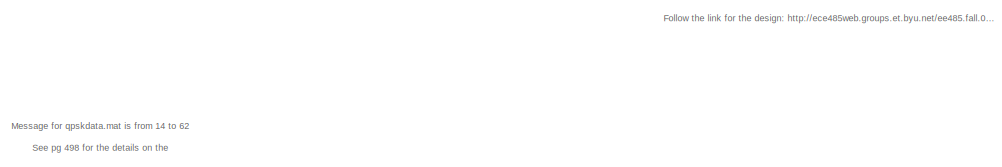
[diagram: root canvas - part 1/5, top center region]
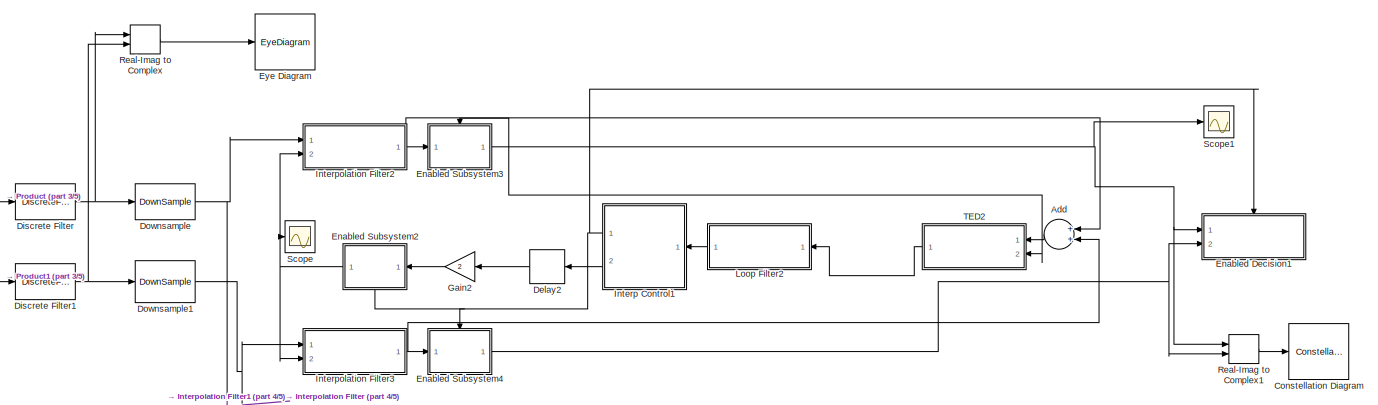
[diagram: root canvas - part 2/5, top right region]
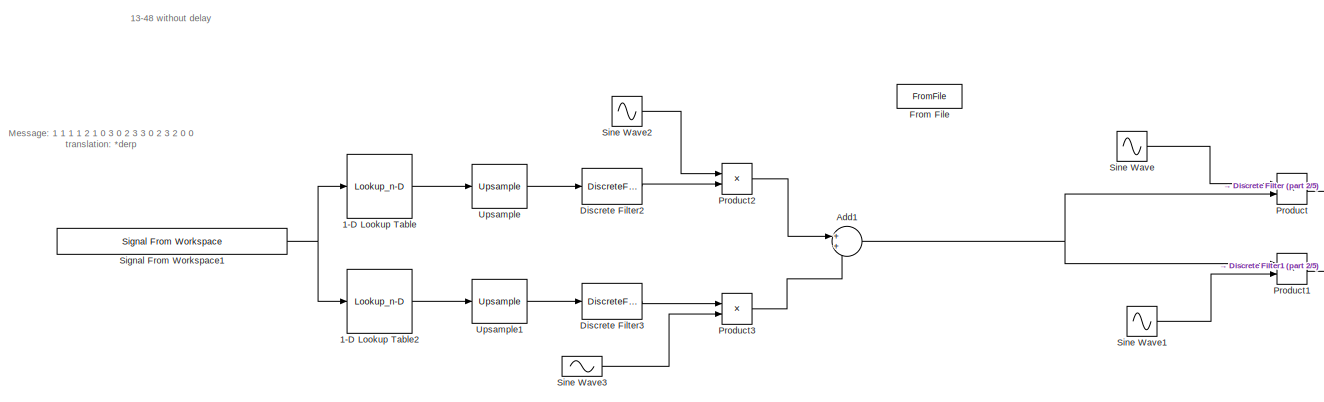
[diagram: root canvas - part 3/5, middle left region]
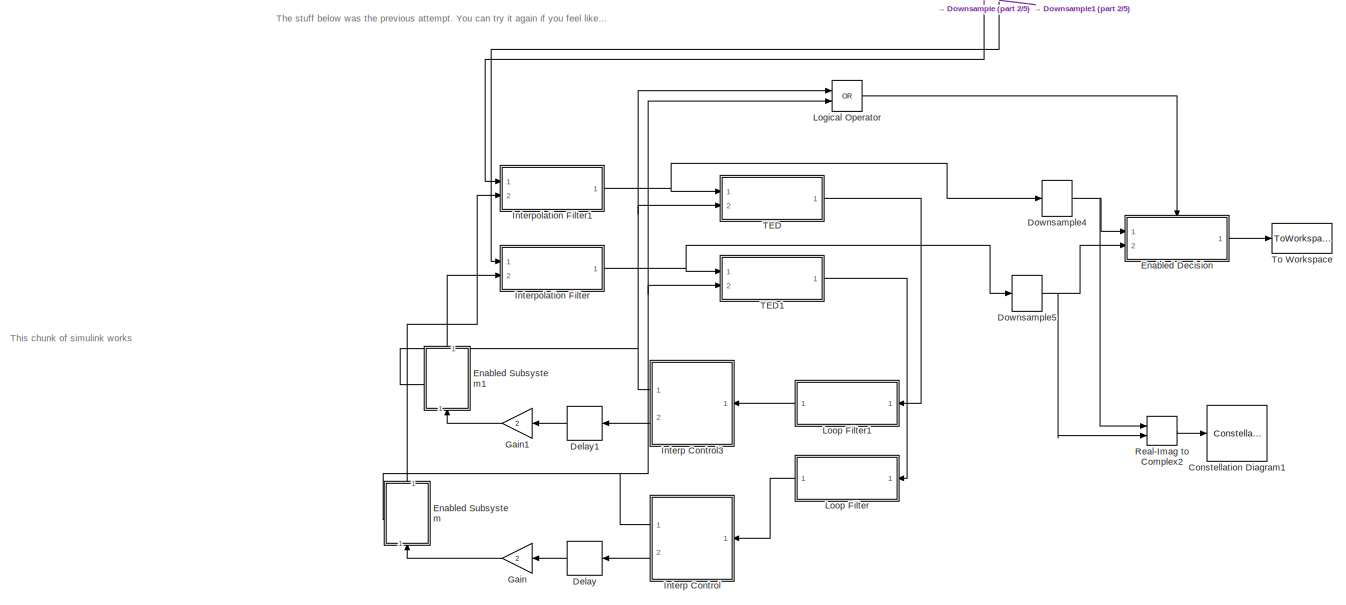
[diagram: root canvas - part 4/5, bottom center region]
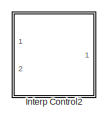
[diagram: root canvas - part 5/5, bottom right region]
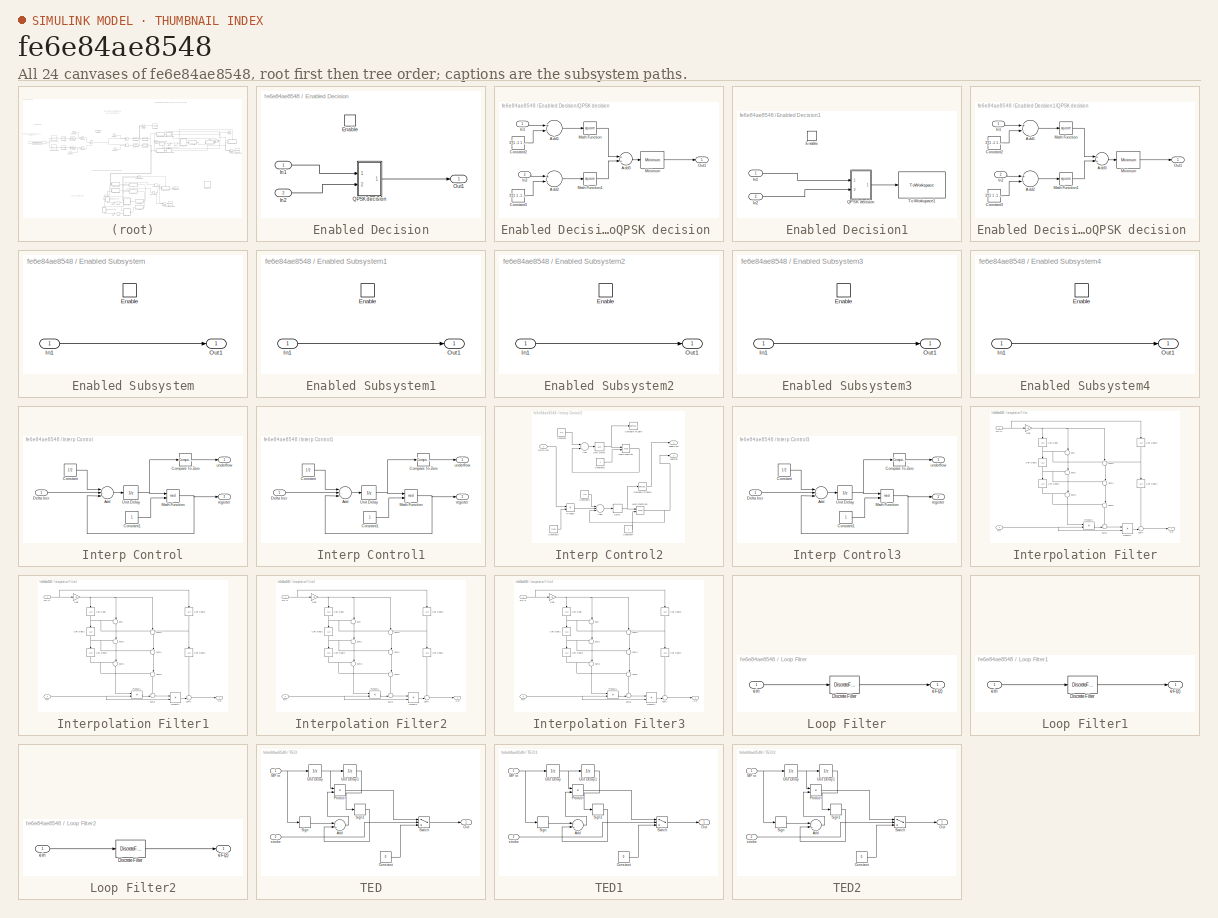
[diagram: thumbnail index - all 24 canvases of the model, root first then tree order]
MODEL slx_fe6e84ae8548
KIND model
CONFIG AbsTol = auto
CONFIG EnableMultiTasking = on
CONFIG FixedStep = auto
CONFIG MaxStep = auto
CONFIG MinStep = auto
CONFIG RelTol = 1e-3
CONFIG SampleTimeConstraint = Unconstrained
CONFIG Solver = VariableStepAuto
CONFIG SolverName = VariableStepAuto
CONFIG StartTime = 0.0
CONFIG StopTime = (12+133)*8
BLOCK [Lookup_n-D] 1-D Lookup Table
  BreakpointsForDimension1 = [0 1 2 3]
  InternalRulePriority = Speed
  NumberOfTableDimensions = 1
  Ports = [1, 1]
  RndMeth = Simplest
  Table = [1 -1 1 -1]*3/sqrt(2)
BLOCK [Lookup_n-D] 1-D Lookup Table2
  BreakpointsForDimension1 = [0 1 2 3]
  InternalRulePriority = Speed
  NumberOfTableDimensions = 1
  Ports = [1, 1]
  RndMeth = Simplest
  Table = [1 1 -1 -1]*3/sqrt(2)
BLOCK [Sum] Add
  InputSameDT = off
  OutDataTypeStr = Inherit: Inherit via internal rule
  Ports = [2, 1]
  SaturateOnIntegerOverflow = off
BLOCK [Sum] Add1
  IconShape = round
  InputSameDT = off
  OutDataTypeStr = Inherit: Inherit via internal rule
  Ports = [2, 1]
  SaturateOnIntegerOverflow = off
BLOCK [ConstellationDiagram] Constellation Diagram
  Ports = [1]
  ScopeSpecificationString = comm.scopes.ConstellationDiagramBlockCfg('CurrentConfiguration', extmgr.ConfigurationSet(extmgr.Configuration('Core','General UI',true),extmgr.Configuration('Core','Source UI',true),extmgr.Configuration('Sources','WiredSimulink',true),extmgr.Configuration('Sources','File',false),extmgr.Configuration('Sources','SPTool',false),extmgr.Configuration('Sources','Workspace',false),extmgr.Configuration('S...<+2266ch>
BLOCK [ConstellationDiagram] Constellation Diagram1
  Commented = on
  Ports = [1]
  ScopeSpecificationString = comm.scopes.ConstellationDiagramBlockCfg('CurrentConfiguration', extmgr.ConfigurationSet(extmgr.Configuration('Core','General UI',true),extmgr.Configuration('Core','Source UI',true),extmgr.Configuration('Sources','Streaming',false),extmgr.Configuration('Sources','WiredSimulink',true),extmgr.Configuration('Sources','Workspace',false),extmgr.Configuration('Sources','File',false),extmgr.Configuration...<+2671ch>
BLOCK [Delay] Delay
  Commented = on
  DelayLength = 1
  InputPortMap = u0
  Ports = [1, 1]
BLOCK [Delay] Delay1
  Commented = on
  DelayLength = 1
  InputPortMap = u0
  Ports = [1, 1]
BLOCK [Delay] Delay2
  DelayLength = 1
  InputPortMap = u0
  Ports = [1, 1]
BLOCK [DiscreteFilter] Discrete Filter
  Denominator = [1]
  InputPortMap = u0
  Numerator = rcosine(1,8,'fir/sqrt',0.5,6)
  Ports = [1, 1]
BLOCK [DiscreteFilter] Discrete Filter1
  Denominator = [1]
  InputPortMap = u0
  Numerator = rcosine(1,8,'fir/sqrt',0.5,6)
  Ports = [1, 1]
BLOCK [DiscreteFilter] Discrete Filter2
  Denominator = [1]
  InputPortMap = u0
  Numerator = rcosine(1,8,'fir/sqrt',0.5,6)
  Ports = [1, 1]
BLOCK [DiscreteFilter] Discrete Filter3
  Denominator = [1]
  InputPortMap = u0
  Numerator = rcosine(1,8,'fir/sqrt',0.5,6)
  Ports = [1, 1]
BLOCK [DownSample] Downsample
  InputProcessing = Inherited (this choice will be removed - see release notes)
  N = 16/2
  RateOptions = Allow multirate processing
  phase = 7
BLOCK [DownSample] Downsample1
  InputProcessing = Inherited (this choice will be removed - see release notes)
  N = 16/2
  RateOptions = Allow multirate processing
  phase = 7
BLOCK [DownSample] Downsample4
  Commented = on
  InputProcessing = Elements as channels (sample based)
  RateOptions = Allow multirate processing
BLOCK [DownSample] Downsample5
  Commented = on
  InputProcessing = Elements as channels (sample based)
  RateOptions = Allow multirate processing
BLOCK [SubSystem] Enabled Decision
  Commented = on
  Ports = [2, 1, 1]
  RequestExecContextInheritance = off
  TreatAsAtomicUnit = on
  Variant = off
BLOCK [EnablePort] Enabled Decision/Enable
  Ports = []
BLOCK [Inport] Enabled Decision/In1
  IconDisplay = Port number
BLOCK [Inport] Enabled Decision/In2
  IconDisplay = Port number
  Port = 2
BLOCK [Outport] Enabled Decision/Out1
  IconDisplay = Port number
BLOCK [SubSystem] Enabled Decision/QPSK decision 
  Ports = [2, 1]
  RequestExecContextInheritance = off
  Variant = off
BLOCK [Sum] Enabled Decision/QPSK decision /Add1
  InputSameDT = off
  Inputs = +-
  OutDataTypeStr = Inherit: Inherit via internal rule
  Ports = [2, 1]
  SaturateOnIntegerOverflow = off
BLOCK [Sum] Enabled Decision/QPSK decision /Add2
  InputSameDT = off
  Inputs = +-
  OutDataTypeStr = Inherit: Inherit via internal rule
  Ports = [2, 1]
  SaturateOnIntegerOverflow = off
BLOCK [Sum] Enabled Decision/QPSK decision /Add3
  InputSameDT = off
  OutDataTypeStr = Inherit: Inherit via internal rule
  Ports = [2, 1]
  SaturateOnIntegerOverflow = off
BLOCK [Constant] Enabled Decision/QPSK decision /Constant2
  Value = 3*[1 -1 1 -1] /sqrt(2)
BLOCK [Constant] Enabled Decision/QPSK decision /Constant3
  Value = 3*[1 1 -1 -1] /sqrt(2)
BLOCK [Inport] Enabled Decision/QPSK decision /In1
  IconDisplay = Port number
BLOCK [Inport] Enabled Decision/QPSK decision /In2
  IconDisplay = Port number
  Port = 2
BLOCK [Math] Enabled Decision/QPSK decision /Math Function
  Operator = square
  Ports = [1, 1]
BLOCK [Math] Enabled Decision/QPSK decision /Math Function1
  Operator = square
  Ports = [1, 1]
BLOCK [Reference] Enabled Decision/QPSK decision /Minimum  REF=dspstat3/Minimum
  Ports = [1, 1]
  SourceBlock = dspstat3/Minimum
  SourceType = Minimum
  UserDataPersistent = on
BLOCK [Outport] Enabled Decision/QPSK decision /Out1
  IconDisplay = Port number
BLOCK [SubSystem] Enabled Decision1
  Ports = [2, 0, 1]
  RequestExecContextInheritance = off
  TreatAsAtomicUnit = on
  Variant = off
BLOCK [EnablePort] Enabled Decision1/Enable
  Ports = []
BLOCK [Inport] Enabled Decision1/In1
  IconDisplay = Port number
BLOCK [Inport] Enabled Decision1/In2
  IconDisplay = Port number
  Port = 2
BLOCK [SubSystem] Enabled Decision1/QPSK decision 
  Ports = [2, 1]
  RequestExecContextInheritance = off
  Variant = off
BLOCK [Sum] Enabled Decision1/QPSK decision /Add1
  InputSameDT = off
  Inputs = +-
  OutDataTypeStr = Inherit: Inherit via internal rule
  Ports = [2, 1]
  SaturateOnIntegerOverflow = off
BLOCK [Sum] Enabled Decision1/QPSK decision /Add2
  InputSameDT = off
  Inputs = +-
  OutDataTypeStr = Inherit: Inherit via internal rule
  Ports = [2, 1]
  SaturateOnIntegerOverflow = off
BLOCK [Sum] Enabled Decision1/QPSK decision /Add3
  InputSameDT = off
  OutDataTypeStr = Inherit: Inherit via internal rule
  Ports = [2, 1]
  SaturateOnIntegerOverflow = off
BLOCK [Constant] Enabled Decision1/QPSK decision /Constant2
  Value = 3*[1 -1 1 -1] /sqrt(2)
BLOCK [Constant] Enabled Decision1/QPSK decision /Constant3
  Value = 3*[1 1 -1 -1] /sqrt(2)
BLOCK [Inport] Enabled Decision1/QPSK decision /In1
  IconDisplay = Port number
BLOCK [Inport] Enabled Decision1/QPSK decision /In2
  IconDisplay = Port number
  Port = 2
BLOCK [Math] Enabled Decision1/QPSK decision /Math Function
  Operator = square
  Ports = [1, 1]
BLOCK [Math] Enabled Decision1/QPSK decision /Math Function1
  Operator = square
  Ports = [1, 1]
BLOCK [Reference] Enabled Decision1/QPSK decision /Minimum  REF=dspstat3/Minimum
  Ports = [1, 1]
  SourceBlock = dspstat3/Minimum
  SourceType = Minimum
  UserDataPersistent = on
BLOCK [Outport] Enabled Decision1/QPSK decision /Out1
  IconDisplay = Port number
BLOCK [ToWorkspace] Enabled Decision1/To Workspace1
  FixptAsFi = on
  MaxDataPoints = inf
  Ports = [1]
  SampleTime = -1
  Save2DSignal = 2-D array (concatenate along first dimension)
  VariableName = QPSKbitsT1
BLOCK [SubSystem] Enabled Subsystem
  Commented = on
  Ports = [1, 1, 1]
  RequestExecContextInheritance = off
  TreatAsAtomicUnit = on
  Variant = off
BLOCK [EnablePort] Enabled Subsystem/Enable
  Ports = []
BLOCK [Inport] Enabled Subsystem/In1
  IconDisplay = Port number
BLOCK [Outport] Enabled Subsystem/Out1
  IconDisplay = Port number
BLOCK [SubSystem] Enabled Subsystem1
  Commented = on
  Ports = [1, 1, 1]
  RequestExecContextInheritance = off
  TreatAsAtomicUnit = on
  Variant = off
BLOCK [EnablePort] Enabled Subsystem1/Enable
  Ports = []
BLOCK [Inport] Enabled Subsystem1/In1
  IconDisplay = Port number
BLOCK [Outport] Enabled Subsystem1/Out1
  IconDisplay = Port number
BLOCK [SubSystem] Enabled Subsystem2
  Ports = [1, 1, 1]
  RequestExecContextInheritance = off
  TreatAsAtomicUnit = on
  Variant = off
BLOCK [EnablePort] Enabled Subsystem2/Enable
  Ports = []
BLOCK [Inport] Enabled Subsystem2/In1
  IconDisplay = Port number
BLOCK [Outport] Enabled Subsystem2/Out1
  IconDisplay = Port number
BLOCK [SubSystem] Enabled Subsystem3
  Ports = [1, 1, 1]
  RequestExecContextInheritance = off
  TreatAsAtomicUnit = on
  Variant = off
BLOCK [EnablePort] Enabled Subsystem3/Enable
  Ports = []
BLOCK [Inport] Enabled Subsystem3/In1
  IconDisplay = Port number
BLOCK [Outport] Enabled Subsystem3/Out1
  IconDisplay = Port number
BLOCK [SubSystem] Enabled Subsystem4
  Ports = [1, 1, 1]
  RequestExecContextInheritance = off
  TreatAsAtomicUnit = on
  Variant = off
BLOCK [EnablePort] Enabled Subsystem4/Enable
  Ports = []
BLOCK [Inport] Enabled Subsystem4/In1
  IconDisplay = Port number
BLOCK [Outport] Enabled Subsystem4/Out1
  IconDisplay = Port number
BLOCK [EyeDiagram] Eye Diagram
  Ports = [1]
  ScopeSpecificationString = comm.scopes.EyeDiagramBlockCfg('CurrentConfiguration', extmgr.ConfigurationSet(extmgr.Configuration('Core','General UI',true),extmgr.Configuration('Core','Source UI',true),extmgr.Configuration('Sources','WiredSimulink',true),extmgr.Configuration('Sources','File',false),extmgr.Configuration('Sources','Streaming',false),extmgr.Configuration('Sources','SPTool',false),extmgr.Configuration('Sources','W...<+1878ch>
BLOCK [FromFile] From File
  Commented = on
  FileName = qpskdata.mat
  SampleTime = 1
BLOCK [Gain] Gain
  Commented = on
  Gain = 2
  OutDataTypeStr = Inherit: Inherit via internal rule
  ParamDataTypeStr = Inherit: Inherit via internal rule
  SaturateOnIntegerOverflow = off
BLOCK [Gain] Gain1
  Commented = on
  Gain = 2
  OutDataTypeStr = Inherit: Inherit via internal rule
  ParamDataTypeStr = Inherit: Inherit via internal rule
  SaturateOnIntegerOverflow = off
BLOCK [Gain] Gain2
  Gain = 2
  OutDataTypeStr = Inherit: Inherit via internal rule
  ParamDataTypeStr = Inherit: Inherit via internal rule
  SaturateOnIntegerOverflow = off
BLOCK [SubSystem] Interp Control
  Commented = on
  Ports = [1, 2]
  RequestExecContextInheritance = off
  Variant = off
BLOCK [Sum] Interp Control/Add
  InputSameDT = off
  Inputs = --+
  OutDataTypeStr = Inherit: Inherit via internal rule
  Ports = [3, 1]
  SaturateOnIntegerOverflow = off
BLOCK [Reference] Interp Control/Compare To Zero  REF=simulink/Logic and Bit
Operations/Compare
To Zero
  Ports = [1, 1]
  SourceBlock = simulink/Logic and Bit\nOperations/Compare\nTo Zero
  SourceType = Compare To Zero
BLOCK [Constant] Interp Control/Constant
  Value = 1/2
BLOCK [Constant] Interp Control/Constant1
BLOCK [Inport] Interp Control/Delta Incr
  IconDisplay = Port number
BLOCK [Math] Interp Control/Math Function
  Operator = mod
  Ports = [2, 1]
BLOCK [UnitDelay] Interp Control/Unit Delay
  InputProcessing = Elements as channels (sample based)
  SampleTime = -1
BLOCK [Outport] Interp Control/register
  IconDisplay = Port number
  Port = 2
BLOCK [Outport] Interp Control/underflow
  IconDisplay = Port number
BLOCK [SubSystem] Interp Control1
  Ports = [1, 2]
  RequestExecContextInheritance = off
  Variant = off
BLOCK [Sum] Interp Control1/Add
  InputSameDT = off
  Inputs = --+
  OutDataTypeStr = Inherit: Inherit via internal rule
  Ports = [3, 1]
  SaturateOnIntegerOverflow = off
BLOCK [Reference] Interp Control1/Compare To Zero  REF=simulink/Logic and Bit
Operations/Compare
To Zero
  Ports = [1, 1]
  SourceBlock = simulink/Logic and Bit\nOperations/Compare\nTo Zero
  SourceType = Compare To Zero
BLOCK [Constant] Interp Control1/Constant
  Value = 1/2
BLOCK [Constant] Interp Control1/Constant1
BLOCK [Inport] Interp Control1/Delta Incr
  IconDisplay = Port number
BLOCK [Math] Interp Control1/Math Function
  Operator = mod
  Ports = [2, 1]
BLOCK [UnitDelay] Interp Control1/Unit Delay
  InputProcessing = Elements as channels (sample based)
  SampleTime = -1
BLOCK [Outport] Interp Control1/register
  IconDisplay = Port number
  Port = 2
BLOCK [Outport] Interp Control1/underflow
  IconDisplay = Port number
BLOCK [SubSystem] Interp Control2
  Commented = on
  Ports = [1, 2]
  RequestExecContextInheritance = off
  Variant = off
BLOCK [Sum] Interp Control2/Add
  Commented = on
  InputSameDT = off
  Inputs = --+
  OutDataTypeStr = Inherit: Inherit via internal rule
  Ports = [3, 1]
  SaturateOnIntegerOverflow = off
BLOCK [Sum] Interp Control2/Add1
  InputSameDT = off
  Inputs = --+
  OutDataTypeStr = Inherit: Inherit via internal rule
  Ports = [3, 1]
  SaturateOnIntegerOverflow = off
BLOCK [Reference] Interp Control2/Compare To Zero  REF=simulink/Logic and Bit
Operations/Compare
To Zero
  Commented = on
  Ports = [1, 1]
  SourceBlock = simulink/Logic and Bit\nOperations/Compare\nTo Zero
  SourceType = Compare To Zero
BLOCK [Reference] Interp Control2/Compare To Zero1  REF=simulink/Logic and Bit
Operations/Compare
To Zero
  Ports = [1, 1]
  SourceBlock = simulink/Logic and Bit\nOperations/Compare\nTo Zero
  SourceType = Compare To Zero
BLOCK [Constant] Interp Control2/Constant
  Commented = on
  Value = 1/2
BLOCK [Constant] Interp Control2/Constant1
  Commented = on
BLOCK [Constant] Interp Control2/Constant2
  Value = 2*pi/4
BLOCK [Constant] Interp Control2/Constant3
  Value = 1/8
BLOCK [Constant] Interp Control2/Constant4
BLOCK [Delay] Interp Control2/Delay
  DelayLength = 1
  InputPortMap = u0
  Ports = [1, 1]
BLOCK [Inport] Interp Control2/Delta Incr
  IconDisplay = Port number
BLOCK [Math] Interp Control2/Math Function
  Commented = on
  Operator = mod
  Ports = [2, 1]
BLOCK [Math] Interp Control2/Math Function1
  Operator = mod
  Ports = [2, 1]
BLOCK [Product] Interp Control2/Product
  InputSameDT = off
  OutDataTypeStr = Inherit: Inherit via internal rule
  Ports = [2, 1]
  RndMeth = Floor
  SaturateOnIntegerOverflow = off
BLOCK [UnitDelay] Interp Control2/Unit Delay
  Commented = on
  InputProcessing = Elements as channels (sample based)
  SampleTime = -1
BLOCK [Outport] Interp Control2/register
  IconDisplay = Port number
  Port = 2
BLOCK [Outport] Interp Control2/underflow
  IconDisplay = Port number
BLOCK [SubSystem] Interp Control3
  Commented = on
  Ports = [1, 2]
  RequestExecContextInheritance = off
  Variant = off
BLOCK [Sum] Interp Control3/Add
  InputSameDT = off
  Inputs = --+
  OutDataTypeStr = Inherit: Inherit via internal rule
  Ports = [3, 1]
  SaturateOnIntegerOverflow = off
BLOCK [Reference] Interp Control3/Compare To Zero  REF=simulink/Logic and Bit
Operations/Compare
To Zero
  Ports = [1, 1]
  SourceBlock = simulink/Logic and Bit\nOperations/Compare\nTo Zero
  SourceType = Compare To Zero
BLOCK [Constant] Interp Control3/Constant
  Value = 1/2
BLOCK [Constant] Interp Control3/Constant1
BLOCK [Inport] Interp Control3/Delta Incr
  IconDisplay = Port number
BLOCK [Math] Interp Control3/Math Function
  Operator = mod
  Ports = [2, 1]
BLOCK [UnitDelay] Interp Control3/Unit Delay
  InputProcessing = Elements as channels (sample based)
  SampleTime = -1
BLOCK [Outport] Interp Control3/register
  IconDisplay = Port number
  Port = 2
BLOCK [Outport] Interp Control3/underflow
  IconDisplay = Port number
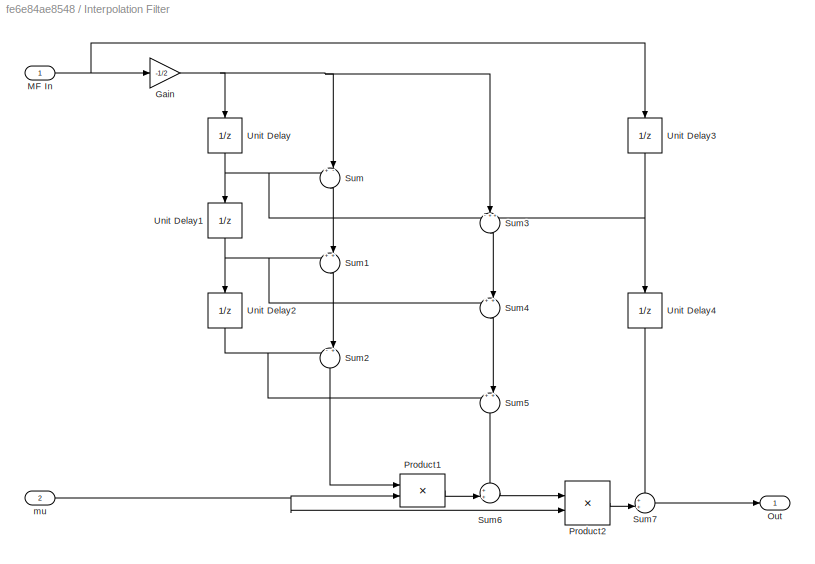
BLOCK [SubSystem] Interpolation Filter
  Commented = on
  Ports = [2, 1]
  RequestExecContextInheritance = off
  Variant = off
BLOCK [Gain] Interpolation Filter/Gain
  Gain = -1/2
  OutDataTypeStr = Inherit: Inherit via internal rule
  ParamDataTypeStr = Inherit: Inherit via internal rule
  SaturateOnIntegerOverflow = off
BLOCK [Inport] Interpolation Filter/MF In
  IconDisplay = Port number
BLOCK [Outport] Interpolation Filter/Out
  IconDisplay = Port number
BLOCK [Product] Interpolation Filter/Product1
  Ports = [2, 1]
  RndMeth = Floor
BLOCK [Product] Interpolation Filter/Product2
  Ports = [2, 1]
  RndMeth = Floor
BLOCK [Sum] Interpolation Filter/Sum
  IconShape = round
  Inputs = +-|
  Ports = [2, 1]
BLOCK [Sum] Interpolation Filter/Sum1
  IconShape = round
  Inputs = ++|
  Ports = [2, 1]
BLOCK [Sum] Interpolation Filter/Sum2
  IconShape = round
  Inputs = -+|
  Ports = [2, 1]
BLOCK [Sum] Interpolation Filter/Sum3
  IconShape = round
  Inputs = -++
  Ports = [3, 1]
BLOCK [Sum] Interpolation Filter/Sum4
  IconShape = round
  Inputs = ++|
  Ports = [2, 1]
BLOCK [Sum] Interpolation Filter/Sum5
  IconShape = round
  Inputs = ++|
  Ports = [2, 1]
BLOCK [Sum] Interpolation Filter/Sum6
  IconShape = round
  Inputs = ++|
  Ports = [2, 1]
BLOCK [Sum] Interpolation Filter/Sum7
  IconShape = round
  Inputs = ++|
  Ports = [2, 1]
BLOCK [UnitDelay] Interpolation Filter/Unit Delay
  InputProcessing = Elements as channels (sample based)
  SampleTime = -1
BLOCK [UnitDelay] Interpolation Filter/Unit Delay1
  InputProcessing = Elements as channels (sample based)
  SampleTime = -1
BLOCK [UnitDelay] Interpolation Filter/Unit Delay2
  InputProcessing = Elements as channels (sample based)
  SampleTime = -1
BLOCK [UnitDelay] Interpolation Filter/Unit Delay3
  InputProcessing = Elements as channels (sample based)
  SampleTime = -1
BLOCK [UnitDelay] Interpolation Filter/Unit Delay4
  InputProcessing = Elements as channels (sample based)
  SampleTime = -1
BLOCK [Inport] Interpolation Filter/mu
  IconDisplay = Port number
  Port = 2
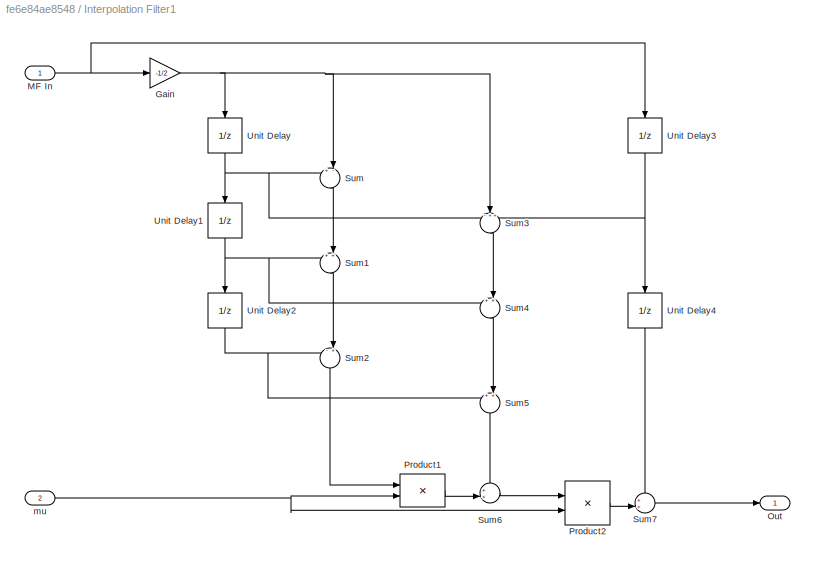
BLOCK [SubSystem] Interpolation Filter1
  Commented = on
  Ports = [2, 1]
  RequestExecContextInheritance = off
  Variant = off
BLOCK [Gain] Interpolation Filter1/Gain
  Gain = -1/2
  OutDataTypeStr = Inherit: Inherit via internal rule
  ParamDataTypeStr = Inherit: Inherit via internal rule
  SaturateOnIntegerOverflow = off
BLOCK [Inport] Interpolation Filter1/MF In
  IconDisplay = Port number
BLOCK [Outport] Interpolation Filter1/Out
  IconDisplay = Port number
BLOCK [Product] Interpolation Filter1/Product1
  Ports = [2, 1]
  RndMeth = Floor
BLOCK [Product] Interpolation Filter1/Product2
  Ports = [2, 1]
  RndMeth = Floor
BLOCK [Sum] Interpolation Filter1/Sum
  IconShape = round
  Inputs = +-|
  Ports = [2, 1]
BLOCK [Sum] Interpolation Filter1/Sum1
  IconShape = round
  Inputs = ++|
  Ports = [2, 1]
BLOCK [Sum] Interpolation Filter1/Sum2
  IconShape = round
  Inputs = -+|
  Ports = [2, 1]
BLOCK [Sum] Interpolation Filter1/Sum3
  IconShape = round
  Inputs = -++
  Ports = [3, 1]
BLOCK [Sum] Interpolation Filter1/Sum4
  IconShape = round
  Inputs = ++|
  Ports = [2, 1]
BLOCK [Sum] Interpolation Filter1/Sum5
  IconShape = round
  Inputs = ++|
  Ports = [2, 1]
BLOCK [Sum] Interpolation Filter1/Sum6
  IconShape = round
  Inputs = ++|
  Ports = [2, 1]
BLOCK [Sum] Interpolation Filter1/Sum7
  IconShape = round
  Inputs = ++|
  Ports = [2, 1]
BLOCK [UnitDelay] Interpolation Filter1/Unit Delay
  InputProcessing = Elements as channels (sample based)
  SampleTime = -1
BLOCK [UnitDelay] Interpolation Filter1/Unit Delay1
  InputProcessing = Elements as channels (sample based)
  SampleTime = -1
BLOCK [UnitDelay] Interpolation Filter1/Unit Delay2
  InputProcessing = Elements as channels (sample based)
  SampleTime = -1
BLOCK [UnitDelay] Interpolation Filter1/Unit Delay3
  InputProcessing = Elements as channels (sample based)
  SampleTime = -1
BLOCK [UnitDelay] Interpolation Filter1/Unit Delay4
  InputProcessing = Elements as channels (sample based)
  SampleTime = -1
BLOCK [Inport] Interpolation Filter1/mu
  IconDisplay = Port number
  Port = 2
BLOCK [SubSystem] Interpolation Filter2
  Ports = [2, 1]
  RequestExecContextInheritance = off
  Variant = off
BLOCK [Gain] Interpolation Filter2/Gain
  Gain = -1/2
  OutDataTypeStr = Inherit: Inherit via internal rule
  ParamDataTypeStr = Inherit: Inherit via internal rule
  SaturateOnIntegerOverflow = off
BLOCK [Inport] Interpolation Filter2/MF In
  IconDisplay = Port number
BLOCK [Outport] Interpolation Filter2/Out
  IconDisplay = Port number
BLOCK [Product] Interpolation Filter2/Product1
  Ports = [2, 1]
  RndMeth = Floor
BLOCK [Product] Interpolation Filter2/Product2
  Ports = [2, 1]
  RndMeth = Floor
BLOCK [Sum] Interpolation Filter2/Sum
  IconShape = round
  Inputs = +-|
  Ports = [2, 1]
BLOCK [Sum] Interpolation Filter2/Sum1
  IconShape = round
  Inputs = ++|
  Ports = [2, 1]
BLOCK [Sum] Interpolation Filter2/Sum2
  IconShape = round
  Inputs = -+|
  Ports = [2, 1]
BLOCK [Sum] Interpolation Filter2/Sum3
  IconShape = round
  Inputs = -++
  Ports = [3, 1]
BLOCK [Sum] Interpolation Filter2/Sum4
  IconShape = round
  Inputs = ++|
  Ports = [2, 1]
BLOCK [Sum] Interpolation Filter2/Sum5
  IconShape = round
  Inputs = ++|
  Ports = [2, 1]
BLOCK [Sum] Interpolation Filter2/Sum6
  IconShape = round
  Inputs = ++|
  Ports = [2, 1]
BLOCK [Sum] Interpolation Filter2/Sum7
  IconShape = round
  Inputs = ++|
  Ports = [2, 1]
BLOCK [UnitDelay] Interpolation Filter2/Unit Delay
  InputProcessing = Elements as channels (sample based)
  SampleTime = -1
BLOCK [UnitDelay] Interpolation Filter2/Unit Delay1
  InputProcessing = Elements as channels (sample based)
  SampleTime = -1
BLOCK [UnitDelay] Interpolation Filter2/Unit Delay2
  InputProcessing = Elements as channels (sample based)
  SampleTime = -1
BLOCK [UnitDelay] Interpolation Filter2/Unit Delay3
  InputProcessing = Elements as channels (sample based)
  SampleTime = -1
BLOCK [UnitDelay] Interpolation Filter2/Unit Delay4
  InputProcessing = Elements as channels (sample based)
  SampleTime = -1
BLOCK [Inport] Interpolation Filter2/mu
  IconDisplay = Port number
  Port = 2
BLOCK [SubSystem] Interpolation Filter3
  Ports = [2, 1]
  RequestExecContextInheritance = off
  Variant = off
BLOCK [Gain] Interpolation Filter3/Gain
  Gain = -1/2
  OutDataTypeStr = Inherit: Inherit via internal rule
  ParamDataTypeStr = Inherit: Inherit via internal rule
  SaturateOnIntegerOverflow = off
BLOCK [Inport] Interpolation Filter3/MF In
  IconDisplay = Port number
BLOCK [Outport] Interpolation Filter3/Out
  IconDisplay = Port number
BLOCK [Product] Interpolation Filter3/Product1
  Ports = [2, 1]
  RndMeth = Floor
BLOCK [Product] Interpolation Filter3/Product2
  Ports = [2, 1]
  RndMeth = Floor
BLOCK [Sum] Interpolation Filter3/Sum
  IconShape = round
  Inputs = +-|
  Ports = [2, 1]
BLOCK [Sum] Interpolation Filter3/Sum1
  IconShape = round
  Inputs = ++|
  Ports = [2, 1]
BLOCK [Sum] Interpolation Filter3/Sum2
  IconShape = round
  Inputs = -+|
  Ports = [2, 1]
BLOCK [Sum] Interpolation Filter3/Sum3
  IconShape = round
  Inputs = -++
  Ports = [3, 1]
BLOCK [Sum] Interpolation Filter3/Sum4
  IconShape = round
  Inputs = ++|
  Ports = [2, 1]
BLOCK [Sum] Interpolation Filter3/Sum5
  IconShape = round
  Inputs = ++|
  Ports = [2, 1]
BLOCK [Sum] Interpolation Filter3/Sum6
  IconShape = round
  Inputs = ++|
  Ports = [2, 1]
BLOCK [Sum] Interpolation Filter3/Sum7
  IconShape = round
  Inputs = ++|
  Ports = [2, 1]
BLOCK [UnitDelay] Interpolation Filter3/Unit Delay
  InputProcessing = Elements as channels (sample based)
  SampleTime = -1
BLOCK [UnitDelay] Interpolation Filter3/Unit Delay1
  InputProcessing = Elements as channels (sample based)
  SampleTime = -1
BLOCK [UnitDelay] Interpolation Filter3/Unit Delay2
  InputProcessing = Elements as channels (sample based)
  SampleTime = -1
BLOCK [UnitDelay] Interpolation Filter3/Unit Delay3
  InputProcessing = Elements as channels (sample based)
  SampleTime = -1
BLOCK [UnitDelay] Interpolation Filter3/Unit Delay4
  InputProcessing = Elements as channels (sample based)
  SampleTime = -1
BLOCK [Inport] Interpolation Filter3/mu
  IconDisplay = Port number
  Port = 2
BLOCK [Logic] Logical Operator
  AllPortsSameDT = off
  Commented = on
  Operator = OR
  OutDataTypeStr = boolean
  Ports = [2, 1]
BLOCK [SubSystem] Loop Filter
  Commented = on
  Ports = [1, 1]
  RequestExecContextInheritance = off
  Variant = off
BLOCK [DiscreteFilter] Loop Filter/Discrete Filter
  Denominator = [1 -1]
  InputPortMap = u0
  Numerator = [(K1+K2) -K1]
  Ports = [1, 1]
BLOCK [Outport] Loop Filter/e F(z)
  IconDisplay = Port number
BLOCK [Inport] Loop Filter/e in
  IconDisplay = Port number
BLOCK [SubSystem] Loop Filter1
  Commented = on
  Ports = [1, 1]
  RequestExecContextInheritance = off
  Variant = off
BLOCK [DiscreteFilter] Loop Filter1/Discrete Filter
  Denominator = [1 -1]
  InputPortMap = u0
  Numerator = [(K1+K2) -K1]
  Ports = [1, 1]
BLOCK [Outport] Loop Filter1/e F(z)
  IconDisplay = Port number
BLOCK [Inport] Loop Filter1/e in
  IconDisplay = Port number
BLOCK [SubSystem] Loop Filter2
  Ports = [1, 1]
  RequestExecContextInheritance = off
  Variant = off
BLOCK [DiscreteFilter] Loop Filter2/Discrete Filter
  Denominator = [1 -1]
  InputPortMap = u0
  Numerator = [(K1+K2) -K1]
  Ports = [1, 1]
BLOCK [Outport] Loop Filter2/e F(z)
  IconDisplay = Port number
BLOCK [Inport] Loop Filter2/e in
  IconDisplay = Port number
BLOCK [Product] Product
  InputSameDT = off
  OutDataTypeStr = Inherit: Inherit via internal rule
  Ports = [2, 1]
  RndMeth = Floor
  SaturateOnIntegerOverflow = off
BLOCK [Product] Product1
  InputSameDT = off
  OutDataTypeStr = Inherit: Inherit via internal rule
  Ports = [2, 1]
  RndMeth = Floor
  SaturateOnIntegerOverflow = off
BLOCK [Product] Product2
  InputSameDT = off
  OutDataTypeStr = Inherit: Inherit via internal rule
  Ports = [2, 1]
  RndMeth = Floor
  SaturateOnIntegerOverflow = off
BLOCK [Product] Product3
  InputSameDT = off
  OutDataTypeStr = Inherit: Inherit via internal rule
  Ports = [2, 1]
  RndMeth = Floor
  SaturateOnIntegerOverflow = off
BLOCK [RealImagToComplex] Real-Imag to Complex
  Ports = [2, 1]
BLOCK [RealImagToComplex] Real-Imag to Complex1
  Ports = [2, 1]
BLOCK [RealImagToComplex] Real-Imag to Complex2
  Commented = on
  Ports = [2, 1]
BLOCK [Scope] Scope
  NumInputPorts = 1
  Ports = [1]
  ScopeSpecificationString = Simulink.scopes.TimeScopeBlockCfg('CurrentConfiguration', extmgr.ConfigurationSet(extmgr.Configuration('Core','General UI',true),extmgr.Configuration('Core','Source UI',true),extmgr.Configuration('Sources','WiredSimulink',true),extmgr.Configuration('Visuals','Time Domain',true,'SerializedDisplays',{struct('MinYLimReal','-0.12598','MaxYLimReal','1.13379','YLabelReal','','MinYLimMag','0.00000','MaxY...<+1338ch>
BLOCK [Scope] Scope1
  NumInputPorts = 1
  Ports = [1]
  ScopeSpecificationString = Simulink.scopes.TimeScopeBlockCfg('CurrentConfiguration', extmgr.ConfigurationSet(extmgr.Configuration('Core','General UI',true),extmgr.Configuration('Core','Source UI',true),extmgr.Configuration('Sources','WiredSimulink',true,'DataLoggingVariableName','ScopeData1'),extmgr.Configuration('Visuals','Time Domain',true,'SerializedDisplays',{struct('MinYLimReal','-3.78033','MaxYLimReal','3.86412','YLab...<+1377ch>
BLOCK [Reference] Signal From Workspace1  REF=dspsrcs4/Signal From
Workspace
  Ports = [0, 1]
  SourceBlock = dspsrcs4/Signal From\nWorkspace
  SourceType = Signal From Workspace
BLOCK [Sin] Sine Wave
  Amplitude = sqrt(2)
  Frequency = 2*pi/4
  Phase = pi/2
  Ports = [0, 1]
  SampleTime = .5
BLOCK [Sin] Sine Wave1
  Amplitude = -sqrt(2)
  Frequency = 2*pi/4
  Ports = [0, 1]
  SampleTime = .5
BLOCK [Sin] Sine Wave2
  Amplitude = sqrt(2)
  Frequency = 2*pi/4
  Phase = pi/2
  Ports = [0, 1]
  SampleTime = .5
BLOCK [Sin] Sine Wave3
  Amplitude = -sqrt(2)
  Frequency = 2*pi/4
  Ports = [0, 1]
  SampleTime = .5
BLOCK [SubSystem] TED
  Commented = on
  Ports = [2, 1]
  RequestExecContextInheritance = off
  Variant = off
BLOCK [Sum] TED/Add
  InputSameDT = off
  Inputs = -+
  OutDataTypeStr = Inherit: Inherit via internal rule
  Ports = [2, 1]
  SaturateOnIntegerOverflow = off
BLOCK [Constant] TED/Constant
  Value = 0
BLOCK [Inport] TED/MF in
  IconDisplay = Port number
BLOCK [Outport] TED/Out
  IconDisplay = Port number
BLOCK [Product] TED/Product
  InputSameDT = off
  OutDataTypeStr = Inherit: Inherit via internal rule
  Ports = [2, 1]
  RndMeth = Floor
  SaturateOnIntegerOverflow = off
BLOCK [Signum] TED/Sign
BLOCK [Signum] TED/Sign1
BLOCK [Switch] TED/Switch
  InputSameDT = off
  Threshold = 0.5
BLOCK [UnitDelay] TED/Unit Delay
  InputProcessing = Elements as channels (sample based)
  SampleTime = -1
BLOCK [UnitDelay] TED/Unit Delay1
  InputProcessing = Elements as channels (sample based)
  SampleTime = -1
BLOCK [Inport] TED/strobe
  IconDisplay = Port number
  Port = 2
BLOCK [SubSystem] TED1
  Commented = on
  Ports = [2, 1]
  RequestExecContextInheritance = off
  Variant = off
BLOCK [Sum] TED1/Add
  InputSameDT = off
  Inputs = -+
  OutDataTypeStr = Inherit: Inherit via internal rule
  Ports = [2, 1]
  SaturateOnIntegerOverflow = off
BLOCK [Constant] TED1/Constant
  Value = 0
BLOCK [Inport] TED1/MF in
  IconDisplay = Port number
BLOCK [Outport] TED1/Out
  IconDisplay = Port number
BLOCK [Product] TED1/Product
  InputSameDT = off
  OutDataTypeStr = Inherit: Inherit via internal rule
  Ports = [2, 1]
  RndMeth = Floor
  SaturateOnIntegerOverflow = off
BLOCK [Signum] TED1/Sign
BLOCK [Signum] TED1/Sign1
BLOCK [Switch] TED1/Switch
  InputSameDT = off
  Threshold = 0.5
BLOCK [UnitDelay] TED1/Unit Delay
  InputProcessing = Elements as channels (sample based)
  SampleTime = -1
BLOCK [UnitDelay] TED1/Unit Delay1
  InputProcessing = Elements as channels (sample based)
  SampleTime = -1
BLOCK [Inport] TED1/strobe
  IconDisplay = Port number
  Port = 2
BLOCK [SubSystem] TED2
  Ports = [2, 1]
  RequestExecContextInheritance = off
  Variant = off
BLOCK [Sum] TED2/Add
  InputSameDT = off
  Inputs = -+
  OutDataTypeStr = Inherit: Inherit via internal rule
  Ports = [2, 1]
  SaturateOnIntegerOverflow = off
BLOCK [Constant] TED2/Constant
  Value = 0
BLOCK [Inport] TED2/MF in
  IconDisplay = Port number
BLOCK [Outport] TED2/Out
  IconDisplay = Port number
BLOCK [Product] TED2/Product
  InputSameDT = off
  OutDataTypeStr = Inherit: Inherit via internal rule
  Ports = [2, 1]
  RndMeth = Floor
  SaturateOnIntegerOverflow = off
BLOCK [Signum] TED2/Sign
BLOCK [Signum] TED2/Sign1
BLOCK [Switch] TED2/Switch
  InputSameDT = off
  Threshold = 0.5
BLOCK [UnitDelay] TED2/Unit Delay
  InputProcessing = Elements as channels (sample based)
  SampleTime = -1
BLOCK [UnitDelay] TED2/Unit Delay1
  InputProcessing = Elements as channels (sample based)
  SampleTime = -1
BLOCK [Inport] TED2/strobe
  IconDisplay = Port number
  Port = 2
BLOCK [ToWorkspace] To Workspace
  Commented = on
  FixptAsFi = on
  MaxDataPoints = inf
  Ports = [1]
  SampleTime = -1
  Save2DSignal = 2-D array (concatenate along first dimension)
  VariableName = QPSKbitsT
BLOCK [Reference] Upsample  REF=dspsigops/Upsample
  Ports = [1, 1]
  SourceBlock = dspsigops/Upsample
  SourceType = Upsample
  UserDataPersistent = on
BLOCK [Reference] Upsample1  REF=dspsigops/Upsample
  Ports = [1, 1]
  SourceBlock = dspsigops/Upsample
  SourceType = Upsample
  UserDataPersistent = on
ANNOTATION (root): 13-48 without delay
ANNOTATION (root): The stuff below was the previous attempt. You can try it again if you feel like it.
ANNOTATION (root): This chunk of simulink works
ANNOTATION (root): Follow the link for the design: http://ece485web.groups.et.byu.net/ee485.fall.01/simulink/qpsktr/qpsktr.html
ANNOTATION (root): Message for qpskdata.mat is from 14 to 62 See pg 498 for the details on the
ANNOTATION (root): Message: 1 1 1 1 2 1 0 3 0 2 3 3 0 2 3 2 0 0 translation: *derp
LINE 1-D Lookup Table2:1 -> Upsample1:1
LINE 1-D Lookup Table:1 -> Upsample:1
NET Add1:1 -> Product1:1, Product:2
LINE Add:1 -> TED2:1
LINE Delay1:1 -> Gain1:1
LINE Delay2:1 -> Gain2:1
LINE Delay:1 -> Gain:1
NET Discrete Filter1:1 -> Downsample1:1, Real-Imag to Complex:2
LINE Discrete Filter2:1 -> Product2:2
LINE Discrete Filter3:1 -> Product3:1
NET Discrete Filter:1 -> Downsample:1, Real-Imag to Complex:1
NET Downsample1:1 -> Interpolation Filter3:1, Interpolation Filter:1
NET Downsample4:1 -> Enabled Decision:1, Real-Imag to Complex2:1
NET Downsample5:1 -> Enabled Decision:2, Real-Imag to Complex2:2
NET Downsample:1 -> Interpolation Filter1:1, Interpolation Filter2:1
LINE Enabled Decision/In1:1 -> Enabled Decision/QPSK decision :1
LINE Enabled Decision/In2:1 -> Enabled Decision/QPSK decision :2
LINE Enabled Decision/QPSK decision /Add1:1 -> Enabled Decision/QPSK decision /Math Function:1
LINE Enabled Decision/QPSK decision /Add2:1 -> Enabled Decision/QPSK decision /Math Function1:1
LINE Enabled Decision/QPSK decision /Add3:1 -> Enabled Decision/QPSK decision /Minimum:1
LINE Enabled Decision/QPSK decision /Constant2:1 -> Enabled Decision/QPSK decision /Add1:2
LINE Enabled Decision/QPSK decision /Constant3:1 -> Enabled Decision/QPSK decision /Add2:2
LINE Enabled Decision/QPSK decision /In1:1 -> Enabled Decision/QPSK decision /Add1:1
LINE Enabled Decision/QPSK decision /In2:1 -> Enabled Decision/QPSK decision /Add2:1
LINE Enabled Decision/QPSK decision /Math Function1:1 -> Enabled Decision/QPSK decision /Add3:2
LINE Enabled Decision/QPSK decision /Math Function:1 -> Enabled Decision/QPSK decision /Add3:1
LINE Enabled Decision/QPSK decision /Minimum:1 -> Enabled Decision/QPSK decision /Out1:1
LINE Enabled Decision/QPSK decision :1 -> Enabled Decision/Out1:1
LINE Enabled Decision1/In1:1 -> Enabled Decision1/QPSK decision :1
LINE Enabled Decision1/In2:1 -> Enabled Decision1/QPSK decision :2
LINE Enabled Decision1/QPSK decision /Add1:1 -> Enabled Decision1/QPSK decision /Math Function:1
LINE Enabled Decision1/QPSK decision /Add2:1 -> Enabled Decision1/QPSK decision /Math Function1:1
LINE Enabled Decision1/QPSK decision /Add3:1 -> Enabled Decision1/QPSK decision /Minimum:1
LINE Enabled Decision1/QPSK decision /Constant2:1 -> Enabled Decision1/QPSK decision /Add1:2
LINE Enabled Decision1/QPSK decision /Constant3:1 -> Enabled Decision1/QPSK decision /Add2:2
LINE Enabled Decision1/QPSK decision /In1:1 -> Enabled Decision1/QPSK decision /Add1:1
LINE Enabled Decision1/QPSK decision /In2:1 -> Enabled Decision1/QPSK decision /Add2:1
LINE Enabled Decision1/QPSK decision /Math Function1:1 -> Enabled Decision1/QPSK decision /Add3:2
LINE Enabled Decision1/QPSK decision /Math Function:1 -> Enabled Decision1/QPSK decision /Add3:1
LINE Enabled Decision1/QPSK decision /Minimum:1 -> Enabled Decision1/QPSK decision /Out1:1
LINE Enabled Decision1/QPSK decision :1 -> Enabled Decision1/To Workspace1:1
LINE Enabled Decision:1 -> To Workspace:1
LINE Enabled Subsystem/In1:1 -> Enabled Subsystem/Out1:1
LINE Enabled Subsystem1/In1:1 -> Enabled Subsystem1/Out1:1
LINE Enabled Subsystem1:1 -> Interpolation Filter:2
LINE Enabled Subsystem2/In1:1 -> Enabled Subsystem2/Out1:1
NET Enabled Subsystem2:1 -> Interpolation Filter2:2, Interpolation Filter3:2, Scope:1
LINE Enabled Subsystem3/In1:1 -> Enabled Subsystem3/Out1:1
NET Enabled Subsystem3:1 -> Enabled Decision1:1, Real-Imag to Complex1:1, Scope1:1
LINE Enabled Subsystem4/In1:1 -> Enabled Subsystem4/Out1:1
NET Enabled Subsystem4:1 -> Enabled Decision1:2, Real-Imag to Complex1:2
LINE Enabled Subsystem:1 -> Interpolation Filter1:2
LINE Gain1:1 -> Enabled Subsystem1:1
LINE Gain2:1 -> Enabled Subsystem2:1
LINE Gain:1 -> Enabled Subsystem:1
LINE Interp Control/Add:1 -> Interp Control/Unit Delay:1
LINE Interp Control/Compare To Zero:1 -> Interp Control/underflow:1
LINE Interp Control/Constant1:1 -> Interp Control/Math Function:2
LINE Interp Control/Constant:1 -> Interp Control/Add:1
LINE Interp Control/Delta Incr:1 -> Interp Control/Add:2
NET Interp Control/Math Function:1 -> Interp Control/Add:3, Interp Control/register:1
NET Interp Control/Unit Delay:1 -> Interp Control/Compare To Zero:1, Interp Control/Math Function:1
LINE Interp Control1/Add:1 -> Interp Control1/Unit Delay:1
LINE Interp Control1/Compare To Zero:1 -> Interp Control1/underflow:1
LINE Interp Control1/Constant1:1 -> Interp Control1/Math Function:2
LINE Interp Control1/Constant:1 -> Interp Control1/Add:1
LINE Interp Control1/Delta Incr:1 -> Interp Control1/Add:2
NET Interp Control1/Math Function:1 -> Interp Control1/Add:3, Interp Control1/register:1
NET Interp Control1/Unit Delay:1 -> Interp Control1/Compare To Zero:1, Interp Control1/Math Function:1
NET Interp Control1:1 -> Enabled Decision1:enable, Enabled Subsystem2:enable, Enabled Subsystem3:enable, Enabled Subsystem4:enable, TED2:2
LINE Interp Control1:2 -> Delay2:1
LINE Interp Control2/Add1:1 -> Interp Control2/Delay:1
LINE Interp Control2/Add:1 -> Interp Control2/Unit Delay:1
LINE Interp Control2/Compare To Zero1:1 -> Interp Control2/underflow:1
LINE Interp Control2/Constant1:1 -> Interp Control2/Math Function:2
LINE Interp Control2/Constant2:1 -> Interp Control2/Product:2
LINE Interp Control2/Constant3:1 -> Interp Control2/Add1:1
LINE Interp Control2/Constant4:1 -> Interp Control2/Math Function1:2
LINE Interp Control2/Constant:1 -> Interp Control2/Add:1
NET Interp Control2/Delay:1 -> Interp Control2/Compare To Zero1:1, Interp Control2/Math Function1:1
LINE Interp Control2/Delta Incr:1 -> Interp Control2/Product:1
NET Interp Control2/Math Function1:1 -> Interp Control2/Add1:3, Interp Control2/register:1
LINE Interp Control2/Math Function:1 -> Interp Control2/Add:3
LINE Interp Control2/Product:1 -> Interp Control2/Add1:2
NET Interp Control2/Unit Delay:1 -> Interp Control2/Compare To Zero:1, Interp Control2/Math Function:1
LINE Interp Control3/Add:1 -> Interp Control3/Unit Delay:1
LINE Interp Control3/Compare To Zero:1 -> Interp Control3/underflow:1
LINE Interp Control3/Constant1:1 -> Interp Control3/Math Function:2
LINE Interp Control3/Constant:1 -> Interp Control3/Add:1
LINE Interp Control3/Delta Incr:1 -> Interp Control3/Add:2
NET Interp Control3/Math Function:1 -> Interp Control3/Add:3, Interp Control3/register:1
NET Interp Control3/Unit Delay:1 -> Interp Control3/Compare To Zero:1, Interp Control3/Math Function:1
NET Interp Control3:1 -> Enabled Subsystem1:enable, Logical Operator:1, TED:2
LINE Interp Control3:2 -> Delay1:1
NET Interp Control:1 -> Enabled Subsystem:enable, Logical Operator:2, TED1:2
LINE Interp Control:2 -> Delay:1
NET Interpolation Filter/Gain:1 -> Interpolation Filter/Sum3:2, Interpolation Filter/Sum:2, Interpolation Filter/Unit Delay:1
NET Interpolation Filter/MF In:1 -> Interpolation Filter/Gain:1, Interpolation Filter/Unit Delay3:1
LINE Interpolation Filter/Product1:1 -> Interpolation Filter/Sum6:2
LINE Interpolation Filter/Product2:1 -> Interpolation Filter/Sum7:2
LINE Interpolation Filter/Sum1:1 -> Interpolation Filter/Sum2:2
LINE Interpolation Filter/Sum2:1 -> Interpolation Filter/Product1:1
LINE Interpolation Filter/Sum3:1 -> Interpolation Filter/Sum4:2
LINE Interpolation Filter/Sum4:1 -> Interpolation Filter/Sum5:2
LINE Interpolation Filter/Sum5:1 -> Interpolation Filter/Sum6:1
LINE Interpolation Filter/Sum6:1 -> Interpolation Filter/Product2:1
LINE Interpolation Filter/Sum7:1 -> Interpolation Filter/Out:1
LINE Interpolation Filter/Sum:1 -> Interpolation Filter/Sum1:2
NET Interpolation Filter/Unit Delay1:1 -> Interpolation Filter/Sum1:1, Interpolation Filter/Sum4:1, Interpolation Filter/Unit Delay2:1
NET Interpolation Filter/Unit Delay2:1 -> Interpolation Filter/Sum2:1, Interpolation Filter/Sum5:1
NET Interpolation Filter/Unit Delay3:1 -> Interpolation Filter/Sum3:3, Interpolation Filter/Unit Delay4:1
LINE Interpolation Filter/Unit Delay4:1 -> Interpolation Filter/Sum7:1
NET Interpolation Filter/Unit Delay:1 -> Interpolation Filter/Sum3:1, Interpolation Filter/Sum:1, Interpolation Filter/Unit Delay1:1
NET Interpolation Filter/mu:1 -> Interpolation Filter/Product1:2, Interpolation Filter/Product2:2
NET Interpolation Filter1/Gain:1 -> Interpolation Filter1/Sum3:2, Interpolation Filter1/Sum:2, Interpolation Filter1/Unit Delay:1
NET Interpolation Filter1/MF In:1 -> Interpolation Filter1/Gain:1, Interpolation Filter1/Unit Delay3:1
LINE Interpolation Filter1/Product1:1 -> Interpolation Filter1/Sum6:2
LINE Interpolation Filter1/Product2:1 -> Interpolation Filter1/Sum7:2
LINE Interpolation Filter1/Sum1:1 -> Interpolation Filter1/Sum2:2
LINE Interpolation Filter1/Sum2:1 -> Interpolation Filter1/Product1:1
LINE Interpolation Filter1/Sum3:1 -> Interpolation Filter1/Sum4:2
LINE Interpolation Filter1/Sum4:1 -> Interpolation Filter1/Sum5:2
LINE Interpolation Filter1/Sum5:1 -> Interpolation Filter1/Sum6:1
LINE Interpolation Filter1/Sum6:1 -> Interpolation Filter1/Product2:1
LINE Interpolation Filter1/Sum7:1 -> Interpolation Filter1/Out:1
LINE Interpolation Filter1/Sum:1 -> Interpolation Filter1/Sum1:2
NET Interpolation Filter1/Unit Delay1:1 -> Interpolation Filter1/Sum1:1, Interpolation Filter1/Sum4:1, Interpolation Filter1/Unit Delay2:1
NET Interpolation Filter1/Unit Delay2:1 -> Interpolation Filter1/Sum2:1, Interpolation Filter1/Sum5:1
NET Interpolation Filter1/Unit Delay3:1 -> Interpolation Filter1/Sum3:3, Interpolation Filter1/Unit Delay4:1
LINE Interpolation Filter1/Unit Delay4:1 -> Interpolation Filter1/Sum7:1
NET Interpolation Filter1/Unit Delay:1 -> Interpolation Filter1/Sum3:1, Interpolation Filter1/Sum:1, Interpolation Filter1/Unit Delay1:1
NET Interpolation Filter1/mu:1 -> Interpolation Filter1/Product1:2, Interpolation Filter1/Product2:2
NET Interpolation Filter1:1 -> Downsample4:1, TED:1
NET Interpolation Filter2/Gain:1 -> Interpolation Filter2/Sum3:2, Interpolation Filter2/Sum:2, Interpolation Filter2/Unit Delay:1
NET Interpolation Filter2/MF In:1 -> Interpolation Filter2/Gain:1, Interpolation Filter2/Unit Delay3:1
LINE Interpolation Filter2/Product1:1 -> Interpolation Filter2/Sum6:2
LINE Interpolation Filter2/Product2:1 -> Interpolation Filter2/Sum7:2
LINE Interpolation Filter2/Sum1:1 -> Interpolation Filter2/Sum2:2
LINE Interpolation Filter2/Sum2:1 -> Interpolation Filter2/Product1:1
LINE Interpolation Filter2/Sum3:1 -> Interpolation Filter2/Sum4:2
LINE Interpolation Filter2/Sum4:1 -> Interpolation Filter2/Sum5:2
LINE Interpolation Filter2/Sum5:1 -> Interpolation Filter2/Sum6:1
LINE Interpolation Filter2/Sum6:1 -> Interpolation Filter2/Product2:1
LINE Interpolation Filter2/Sum7:1 -> Interpolation Filter2/Out:1
LINE Interpolation Filter2/Sum:1 -> Interpolation Filter2/Sum1:2
NET Interpolation Filter2/Unit Delay1:1 -> Interpolation Filter2/Sum1:1, Interpolation Filter2/Sum4:1, Interpolation Filter2/Unit Delay2:1
NET Interpolation Filter2/Unit Delay2:1 -> Interpolation Filter2/Sum2:1, Interpolation Filter2/Sum5:1
NET Interpolation Filter2/Unit Delay3:1 -> Interpolation Filter2/Sum3:3, Interpolation Filter2/Unit Delay4:1
LINE Interpolation Filter2/Unit Delay4:1 -> Interpolation Filter2/Sum7:1
NET Interpolation Filter2/Unit Delay:1 -> Interpolation Filter2/Sum3:1, Interpolation Filter2/Sum:1, Interpolation Filter2/Unit Delay1:1
NET Interpolation Filter2/mu:1 -> Interpolation Filter2/Product1:2, Interpolation Filter2/Product2:2
NET Interpolation Filter2:1 -> Add:1, Enabled Subsystem3:1
NET Interpolation Filter3/Gain:1 -> Interpolation Filter3/Sum3:2, Interpolation Filter3/Sum:2, Interpolation Filter3/Unit Delay:1
NET Interpolation Filter3/MF In:1 -> Interpolation Filter3/Gain:1, Interpolation Filter3/Unit Delay3:1
LINE Interpolation Filter3/Product1:1 -> Interpolation Filter3/Sum6:2
LINE Interpolation Filter3/Product2:1 -> Interpolation Filter3/Sum7:2
LINE Interpolation Filter3/Sum1:1 -> Interpolation Filter3/Sum2:2
LINE Interpolation Filter3/Sum2:1 -> Interpolation Filter3/Product1:1
LINE Interpolation Filter3/Sum3:1 -> Interpolation Filter3/Sum4:2
LINE Interpolation Filter3/Sum4:1 -> Interpolation Filter3/Sum5:2
LINE Interpolation Filter3/Sum5:1 -> Interpolation Filter3/Sum6:1
LINE Interpolation Filter3/Sum6:1 -> Interpolation Filter3/Product2:1
LINE Interpolation Filter3/Sum7:1 -> Interpolation Filter3/Out:1
LINE Interpolation Filter3/Sum:1 -> Interpolation Filter3/Sum1:2
NET Interpolation Filter3/Unit Delay1:1 -> Interpolation Filter3/Sum1:1, Interpolation Filter3/Sum4:1, Interpolation Filter3/Unit Delay2:1
NET Interpolation Filter3/Unit Delay2:1 -> Interpolation Filter3/Sum2:1, Interpolation Filter3/Sum5:1
NET Interpolation Filter3/Unit Delay3:1 -> Interpolation Filter3/Sum3:3, Interpolation Filter3/Unit Delay4:1
LINE Interpolation Filter3/Unit Delay4:1 -> Interpolation Filter3/Sum7:1
NET Interpolation Filter3/Unit Delay:1 -> Interpolation Filter3/Sum3:1, Interpolation Filter3/Sum:1, Interpolation Filter3/Unit Delay1:1
NET Interpolation Filter3/mu:1 -> Interpolation Filter3/Product1:2, Interpolation Filter3/Product2:2
NET Interpolation Filter3:1 -> Add:2, Enabled Subsystem4:1
NET Interpolation Filter:1 -> Downsample5:1, TED1:1
LINE Logical Operator:1 -> Enabled Decision:enable
LINE Loop Filter/Discrete Filter:1 -> Loop Filter/e F(z):1
LINE Loop Filter/e in:1 -> Loop Filter/Discrete Filter:1
LINE Loop Filter1/Discrete Filter:1 -> Loop Filter1/e F(z):1
LINE Loop Filter1/e in:1 -> Loop Filter1/Discrete Filter:1
LINE Loop Filter1:1 -> Interp Control3:1
LINE Loop Filter2/Discrete Filter:1 -> Loop Filter2/e F(z):1
LINE Loop Filter2/e in:1 -> Loop Filter2/Discrete Filter:1
LINE Loop Filter2:1 -> Interp Control1:1
LINE Loop Filter:1 -> Interp Control:1
LINE Product1:1 -> Discrete Filter1:1
LINE Product2:1 -> Add1:1
LINE Product3:1 -> Add1:2
LINE Product:1 -> Discrete Filter:1
LINE Real-Imag to Complex1:1 -> Constellation Diagram:1
LINE Real-Imag to Complex2:1 -> Constellation Diagram1:1
LINE Real-Imag to Complex:1 -> Eye Diagram:1
NET Signal From Workspace1:1 -> 1-D Lookup Table2:1, 1-D Lookup Table:1
LINE Sine Wave1:1 -> Product1:2
LINE Sine Wave2:1 -> Product2:1
LINE Sine Wave3:1 -> Product3:2
LINE Sine Wave:1 -> Product:1
LINE TED/Add:1 -> TED/Product:2
LINE TED/Constant:1 -> TED/Switch:3
NET TED/MF in:1 -> TED/Sign:1, TED/Unit Delay:1
LINE TED/Product:1 -> TED/Switch:1
LINE TED/Sign1:1 -> TED/Add:2
LINE TED/Sign:1 -> TED/Add:1
LINE TED/Switch:1 -> TED/Out:1
LINE TED/Unit Delay1:1 -> TED/Sign1:1
NET TED/Unit Delay:1 -> TED/Product:1, TED/Unit Delay1:1
LINE TED/strobe:1 -> TED/Switch:2
LINE TED1/Add:1 -> TED1/Product:2
LINE TED1/Constant:1 -> TED1/Switch:3
NET TED1/MF in:1 -> TED1/Sign:1, TED1/Unit Delay:1
LINE TED1/Product:1 -> TED1/Switch:1
LINE TED1/Sign1:1 -> TED1/Add:2
LINE TED1/Sign:1 -> TED1/Add:1
LINE TED1/Switch:1 -> TED1/Out:1
LINE TED1/Unit Delay1:1 -> TED1/Sign1:1
NET TED1/Unit Delay:1 -> TED1/Product:1, TED1/Unit Delay1:1
LINE TED1/strobe:1 -> TED1/Switch:2
LINE TED1:1 -> Loop Filter:1
LINE TED2/Add:1 -> TED2/Product:2
LINE TED2/Constant:1 -> TED2/Switch:3
NET TED2/MF in:1 -> TED2/Sign:1, TED2/Unit Delay:1
LINE TED2/Product:1 -> TED2/Switch:1
LINE TED2/Sign1:1 -> TED2/Add:2
LINE TED2/Sign:1 -> TED2/Add:1
LINE TED2/Switch:1 -> TED2/Out:1
LINE TED2/Unit Delay1:1 -> TED2/Sign1:1
NET TED2/Unit Delay:1 -> TED2/Product:1, TED2/Unit Delay1:1
LINE TED2/strobe:1 -> TED2/Switch:2
LINE TED2:1 -> Loop Filter2:1
LINE TED:1 -> Loop Filter1:1
LINE Upsample1:1 -> Discrete Filter3:1
LINE Upsample:1 -> Discrete Filter2:1
note: NET lines group one-source signal fan-out (src -> all destinations, sorted); 1:1 wires keep LINE
